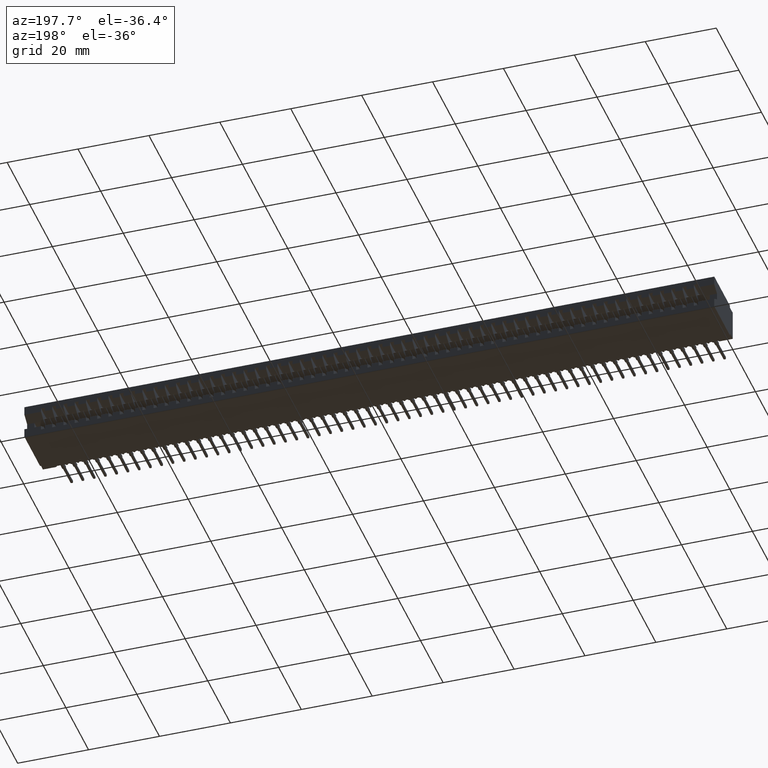
[diagram: clean part render]
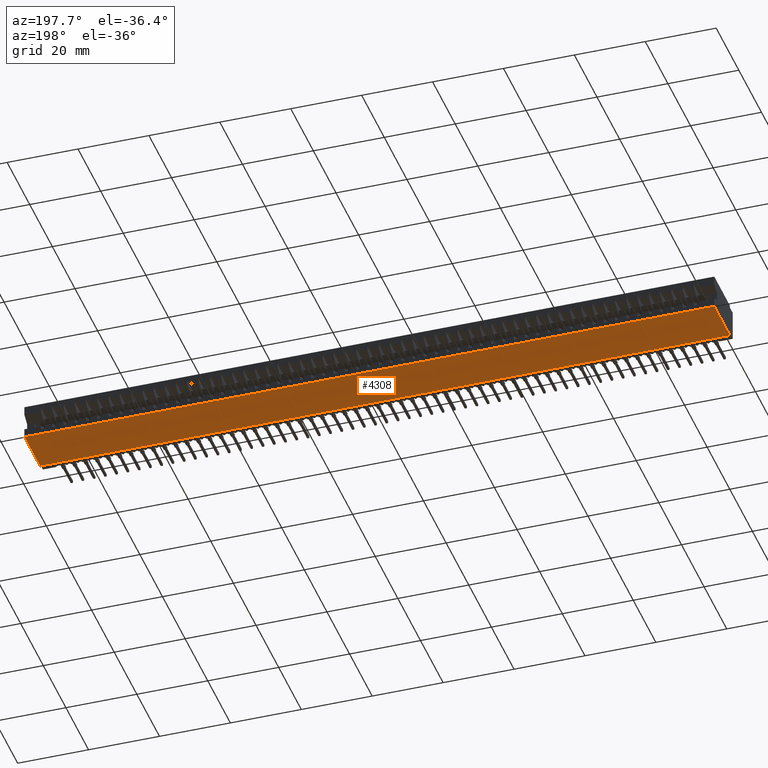
[diagram: same view with one face highlighted and labeled with its STEP entity id]
A machine part, auxiliary view. The second image highlights one B-rep face of the part: STEP entity #4308.
In plain terms, the highlighted planar face has unit normal (0, 0, 1).
Its self-contained STEP definition (entity closure, byte-faithful):
#1039 = LINE ( 'NONE', #20818, #17170 ) ;
#1590 = DIRECTION ( 'NONE',  ( -1.000000000000000000, -0.0000000000000000000, -0.0000000000000000000 ) ) ;
#3205 = CARTESIAN_POINT ( 'NONE',  ( 0.0000000000000000000, 0.6449999999999999067, -0.3900000000000000133 ) ) ;
#4308 = ADVANCED_FACE ( 'NONE', ( #62191 ), #39815, .F. ) ;
#12436 = CARTESIAN_POINT ( 'NONE',  ( 0.0000000000000000000, 0.6449999999999999067, -0.3900000000000000133 ) ) ;
#17170 = VECTOR ( 'NONE', #48170, 39.37007874015748143 ) ;
#20603 = LINE ( 'NONE', #32756, #49359 ) ;
#20818 = CARTESIAN_POINT ( 'NONE',  ( 7.660000000000000142, 0.6449999999999999067, -0.3900000000000000133 ) ) ;
#23223 = VERTEX_POINT ( 'NONE', #37645 ) ;
#23780 = CARTESIAN_POINT ( 'NONE',  ( 7.660000000000000142, 0.6449999999999999067, -0.3900000000000000133 ) ) ;
#24646 = VERTEX_POINT ( 'NONE', #3205 ) ;
#27592 = ORIENTED_EDGE ( 'NONE', *, *, #80676, .T. ) ;
#28860 = VECTOR ( 'NONE', #73576, 39.37007874015748143 ) ;
#32332 = LINE ( 'NONE', #66844, #28860 ) ;
#32756 = CARTESIAN_POINT ( 'NONE',  ( 0.0000000000000000000, 0.6449999999999999067, -0.3900000000000000133 ) ) ;
#33079 = DIRECTION ( 'NONE',  ( 0.0000000000000000000, 0.0000000000000000000, 1.000000000000000000 ) ) ;
#37645 = CARTESIAN_POINT ( 'NONE',  ( 7.660000000000000142, 0.1000000000000000056, -0.3900000000000000133 ) ) ;
#39170 = ORIENTED_EDGE ( 'NONE', *, *, #60297, .T. ) ;
#39815 = PLANE ( 'NONE',  #41398 ) ;
#41398 = AXIS2_PLACEMENT_3D ( 'NONE', #12436, #33079, #75194 ) ;
#45429 = VECTOR ( 'NONE', #1590, 39.37007874015748143 ) ;
#47969 = DIRECTION ( 'NONE',  ( -0.0000000000000000000, -1.000000000000000000, -0.0000000000000000000 ) ) ;
#48170 = DIRECTION ( 'NONE',  ( -0.0000000000000000000, -1.000000000000000000, -0.0000000000000000000 ) ) ;
#49160 = LINE ( 'NONE', #76523, #45429 ) ;
#49359 = VECTOR ( 'NONE', #47969, 39.37007874015748143 ) ;
#52475 = ORIENTED_EDGE ( 'NONE', *, *, #85370, .F. ) ;
#60297 = EDGE_CURVE ( 'NONE', #23223, #73957, #32332, .T. ) ;
#62191 = FACE_OUTER_BOUND ( 'NONE', #76861, .T. ) ;
#66844 = CARTESIAN_POINT ( 'NONE',  ( 7.660000000000000142, 0.1000000000000000056, -0.3900000000000000133 ) ) ;
#73576 = DIRECTION ( 'NONE',  ( -1.000000000000000000, -0.0000000000000000000, -0.0000000000000000000 ) ) ;
#73957 = VERTEX_POINT ( 'NONE', #87496 ) ;
#75194 = DIRECTION ( 'NONE',  ( 1.000000000000000000, 0.0000000000000000000, -0.0000000000000000000 ) ) ;
#75410 = EDGE_CURVE ( 'NONE', #75892, #24646, #49160, .T. ) ;
#75735 = ORIENTED_EDGE ( 'NONE', *, *, #75410, .F. ) ;
#75892 = VERTEX_POINT ( 'NONE', #23780 ) ;
#76523 = CARTESIAN_POINT ( 'NONE',  ( 0.0000000000000000000, 0.6449999999999999067, -0.3900000000000000133 ) ) ;
#76861 = EDGE_LOOP ( 'NONE', ( #27592, #39170, #52475, #75735 ) ) ;
#80676 = EDGE_CURVE ( 'NONE', #75892, #23223, #1039, .T. ) ;
#85370 = EDGE_CURVE ( 'NONE', #24646, #73957, #20603, .T. ) ;
#87496 = CARTESIAN_POINT ( 'NONE',  ( 0.0000000000000000000, 0.1000000000000000056, -0.3900000000000000133 ) ) ;